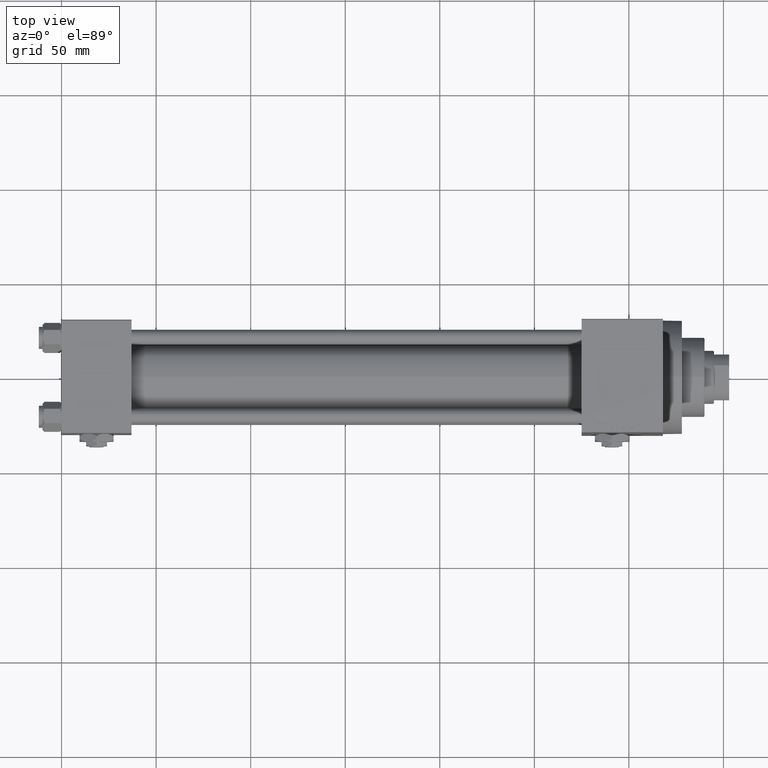
[diagram: clean part render]
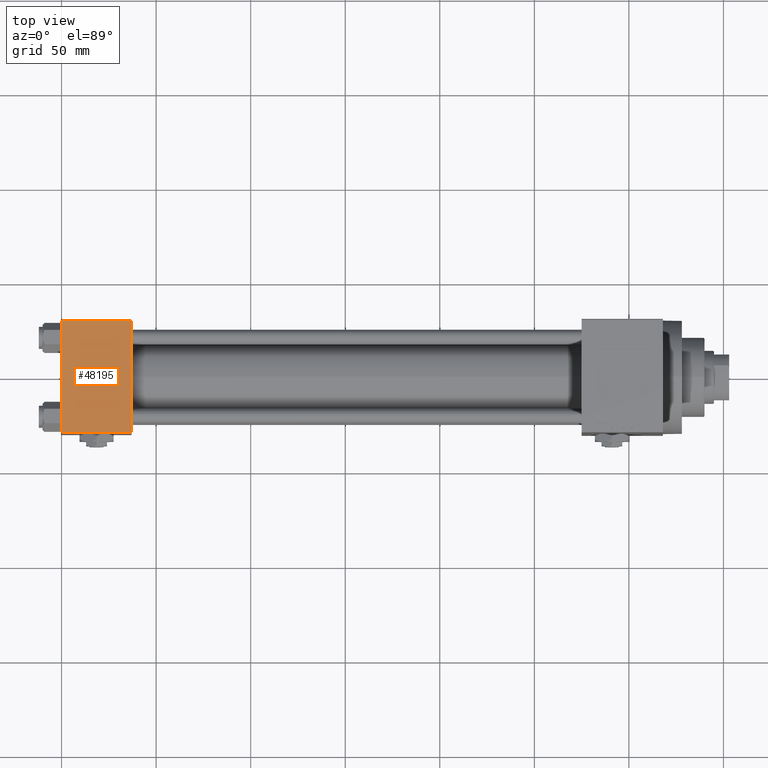
[diagram: same view with one face highlighted and labeled with its STEP entity id]
A machine part, top view. The second image highlights one B-rep face of the part: STEP entity #48195.
In plain terms, the highlighted planar face has unit normal (0, 0, -1).
Its self-contained STEP definition (entity closure, byte-faithful):
#459 = DIRECTION ( 'NONE',  ( 0.000000000000000000, 1.000000000000000000, 1.156482317317871725E-16 ) ) ;
#1847 = EDGE_CURVE ( 'NONE', #11979, #9258, #13553, .T. ) ;
#2344 = DIRECTION ( 'NONE',  ( -1.000000000000000000, 0.000000000000000000, 0.000000000000000000 ) ) ;
#2379 = DIRECTION ( 'NONE',  ( 0.000000000000000000, -1.000000000000000000, -1.156482317317871725E-16 ) ) ;
#2900 = VECTOR ( 'NONE', #16021, 1000.000000000000000 ) ;
#4570 = VECTOR ( 'NONE', #4708, 1000.000000000000000 ) ;
#4708 = DIRECTION ( 'NONE',  ( 1.000000000000000000, 0.000000000000000000, 0.000000000000000000 ) ) ;
#4776 = CARTESIAN_POINT ( 'NONE',  ( 0.000000000000000000, -29.49999999999998579, 29.99999999999999289 ) ) ;
#9258 = VERTEX_POINT ( 'NONE', #20374 ) ;
#11979 = VERTEX_POINT ( 'NONE', #47068 ) ;
#13009 = LINE ( 'NONE', #16754, #2900 ) ;
#13553 = LINE ( 'NONE', #24540, #49178 ) ;
#15430 = PLANE ( 'NONE',  #41037 ) ;
#15683 = CARTESIAN_POINT ( 'NONE',  ( 37.00000000000000000, -29.50000000000000000, 29.99999999999999289 ) ) ;
#16021 = DIRECTION ( 'NONE',  ( 0.000000000000000000, -1.000000000000000000, -1.156482317317871725E-16 ) ) ;
#16455 = VERTEX_POINT ( 'NONE', #41999 ) ;
#16754 = CARTESIAN_POINT ( 'NONE',  ( 37.00000000000000000, 29.99999999999999289, 30.00000000000000000 ) ) ;
#18746 = ORIENTED_EDGE ( 'NONE', *, *, #1847, .T. ) ;
#20374 = CARTESIAN_POINT ( 'NONE',  ( 0.000000000000000000, 29.49999999999999289, 30.00000000000000000 ) ) ;
#20396 = ORIENTED_EDGE ( 'NONE', *, *, #20647, .T. ) ;
#20647 = EDGE_CURVE ( 'NONE', #9258, #33076, #33767, .T. ) ;
#24540 = CARTESIAN_POINT ( 'NONE',  ( 0.000000000000000000, 29.49999999999999289, 30.00000000000000000 ) ) ;
#26650 = LINE ( 'NONE', #15683, #4570 ) ;
#33076 = VERTEX_POINT ( 'NONE', #4776 ) ;
#33767 = LINE ( 'NONE', #36514, #41504 ) ;
#35039 = EDGE_CURVE ( 'NONE', #11979, #16455, #13009, .T. ) ;
#36514 = CARTESIAN_POINT ( 'NONE',  ( 0.000000000000000000, 29.99999999999999289, 30.00000000000000000 ) ) ;
#38103 = FACE_OUTER_BOUND ( 'NONE', #41109, .T. ) ;
#38351 = CARTESIAN_POINT ( 'NONE',  ( 37.00000000000000000, 29.99999999999999289, 30.00000000000000000 ) ) ;
#38375 = EDGE_CURVE ( 'NONE', #33076, #16455, #26650, .T. ) ;
#41037 = AXIS2_PLACEMENT_3D ( 'NONE', #38351, #45821, #459 ) ;
#41109 = EDGE_LOOP ( 'NONE', ( #20396, #41446, #44149, #18746 ) ) ;
#41446 = ORIENTED_EDGE ( 'NONE', *, *, #38375, .T. ) ;
#41504 = VECTOR ( 'NONE', #2379, 1000.000000000000000 ) ;
#41999 = CARTESIAN_POINT ( 'NONE',  ( 37.00000000000000000, -29.49999999999998579, 29.99999999999999289 ) ) ;
#44149 = ORIENTED_EDGE ( 'NONE', *, *, #35039, .F. ) ;
#45821 = DIRECTION ( 'NONE',  ( 0.000000000000000000, 1.156482317317871725E-16, -1.000000000000000000 ) ) ;
#47068 = CARTESIAN_POINT ( 'NONE',  ( 37.00000000000000000, 29.49999999999999289, 30.00000000000000000 ) ) ;
#48195 = ADVANCED_FACE ( 'NONE', ( #38103 ), #15430, .F. ) ;
#49178 = VECTOR ( 'NONE', #2344, 1000.000000000000000 ) ;